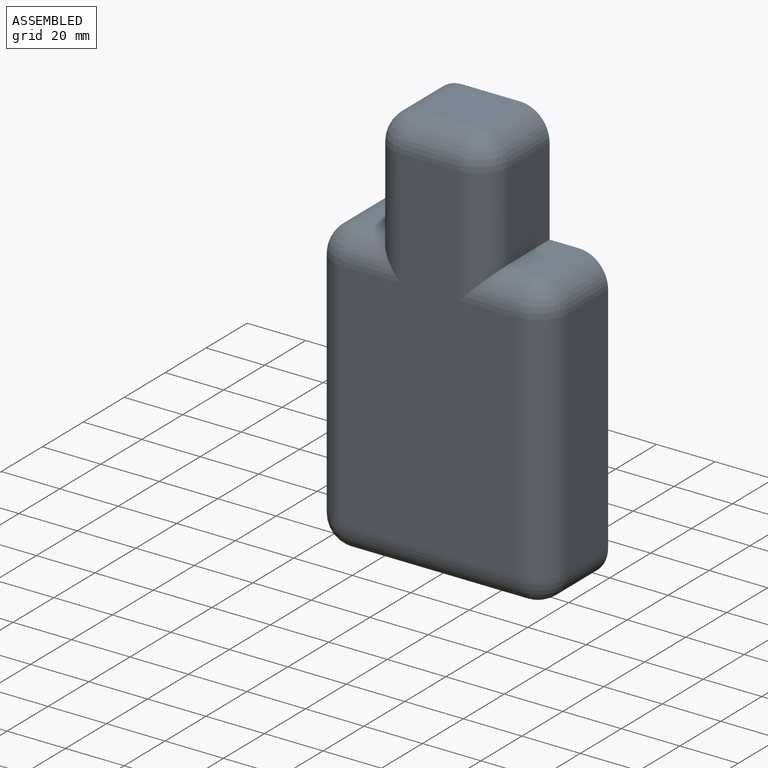
[diagram: assembled view]
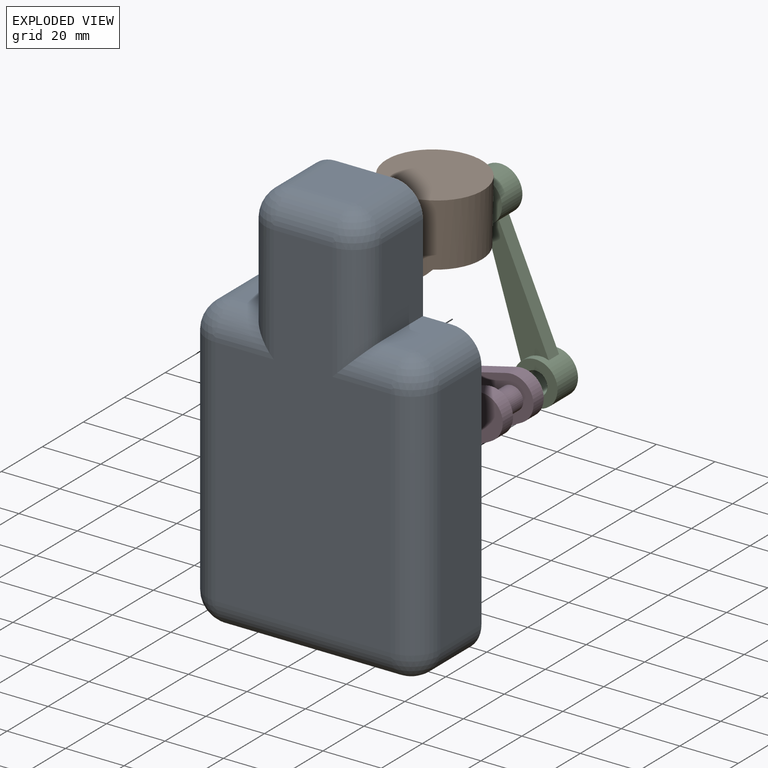
[diagram: exploded view]
GUIDED TOUR — MATED ASSEMBLY (Onshape document 39f56c53c41078a76400f09e, AutoMate assembly 39f56c53c41078a76400f09e_f2b36275736f0dcb15a1e389_f93648f23bc5ed8fcb8ea8ee_default)

This assembly has 4 components, labeled P0..P3 below (a component is one placed occurrence of a part; the same part can appear more than once), held together by 3 mates. A mate is a constraint between two components; its type names the relative motion it leaves free:
  REVOLUTE — leaves rotation about the listed axis free (a hinge).
Axis/direction vectors are unit vectors and 'through' points are millimeter coordinates, both in the assembly's world frame.

MATES
  1. REVOLUTE "Revolute 2": P2 <-> P3, axis (0.000, 1.000, 0.000) through (22.45, -11.09, -10.44) mm
  2. REVOLUTE "Revolute 1": P2 <-> P1, axis (0.000, 1.000, 0.000) through (3.45, -3.59, 41.17) mm
  3. REVOLUTE "Revolute 3": P0 <-> P3, axis (0.000, 1.000, 0.000) through (3.74, 3.91, -17.50) mm

ASSEMBLY ORDER
  1. P2 — the base component [order heuristic]
  2. P1 [order heuristic]
  3. P3 [order heuristic]
  4. P0 [order heuristic]
Order-tag legend:
  [order heuristic] — this assembly is geometrically interlocked (no collision-free removal order exists), so components are listed in mate-graph order; insertion feasibility is not verified.

Of the 4 components, 1 carries the full construction recipe — the FeatureScript program that regenerates the part's solid from scratch; the rest are supplied as boundary geometry only.
Each toured component is shown spotlighted twice — in the assembled view, then in the exploded view, where a leader line traces a displaced component back to its assembled socket (saturated green if recipe-attached, orange if geometry-only; every other component desaturated gray) — followed by its recipe or geometry summary and the mates that hold it.
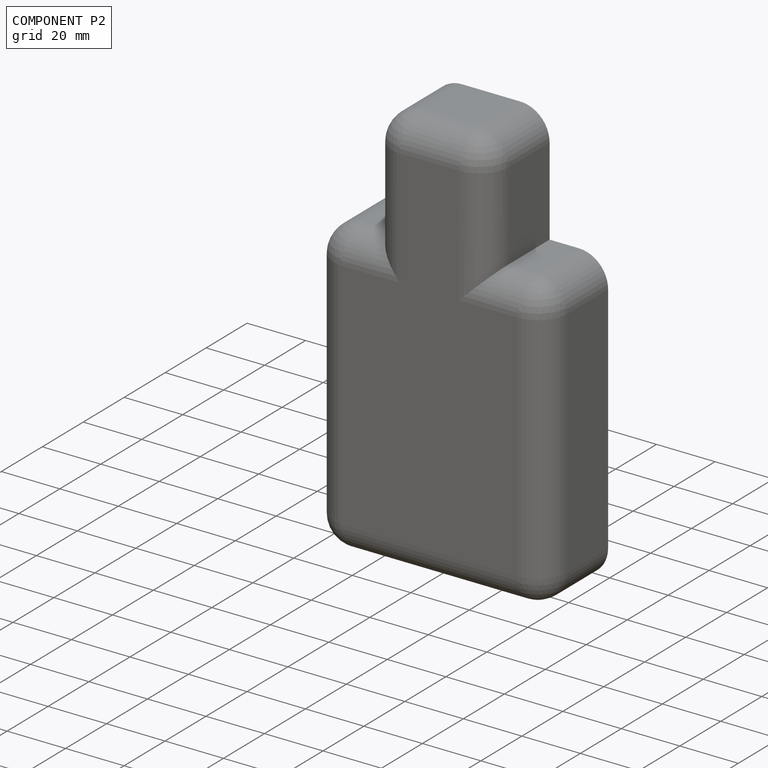
[diagram: component P2 — assembled]
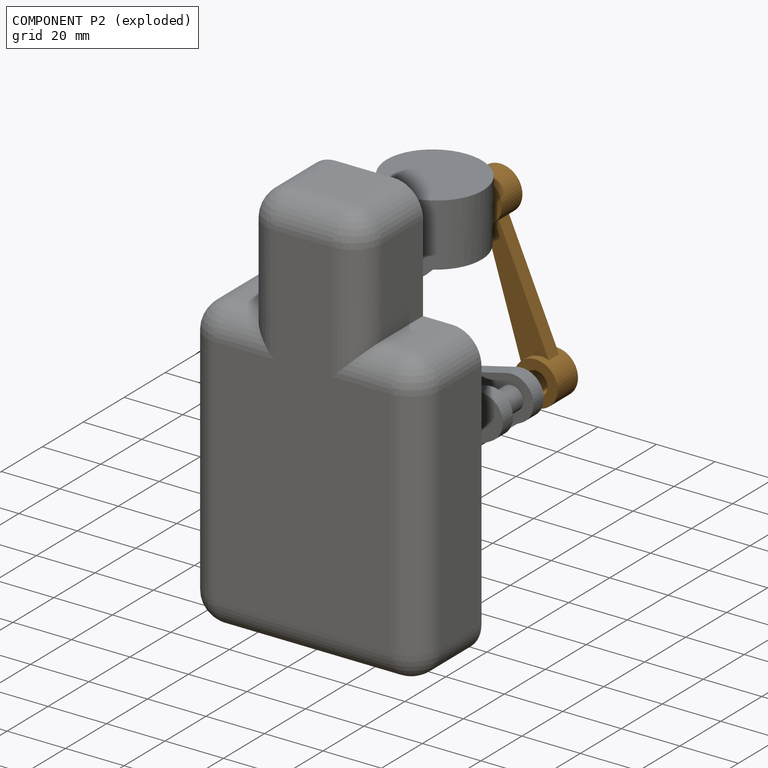
[diagram: component P2 — exploded]
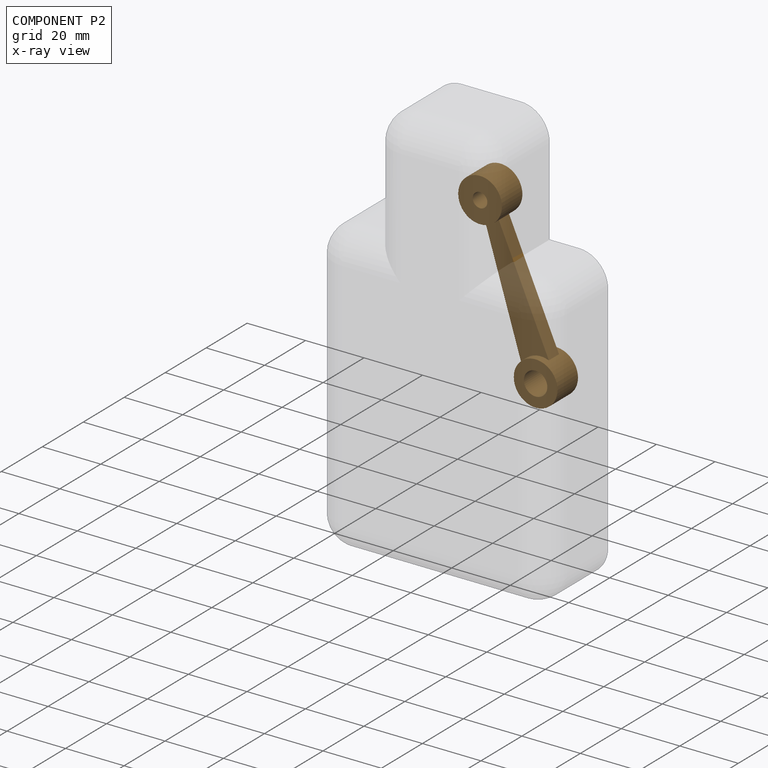
[diagram: component P2 — x-ray view]
COMPONENT P2 — geometry summary (no construction recipe available for this part):
  bounding box: 67.2 x 32.3 x 10.0 mm
  B-rep topology: 1 solid, 12 faces, 50 edges
  volume: 4350 mm^3 (20% of its bounding box)
  symmetry: mirror-symmetric across its y mid-plane
Held by: REVOLUTE mate "Revolute 2" to P3; REVOLUTE mate "Revolute 1" to P1.
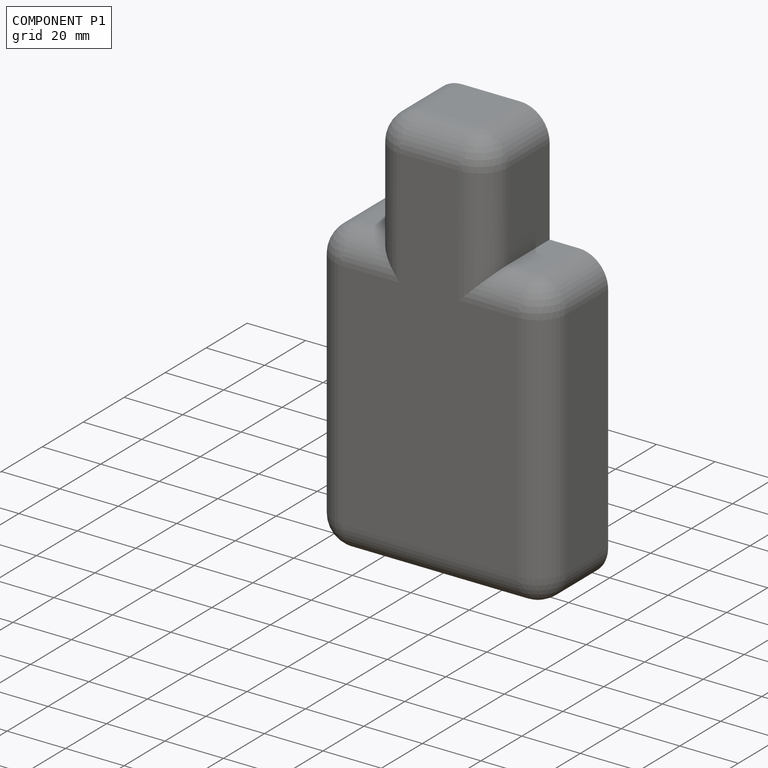
[diagram: component P1 — assembled]
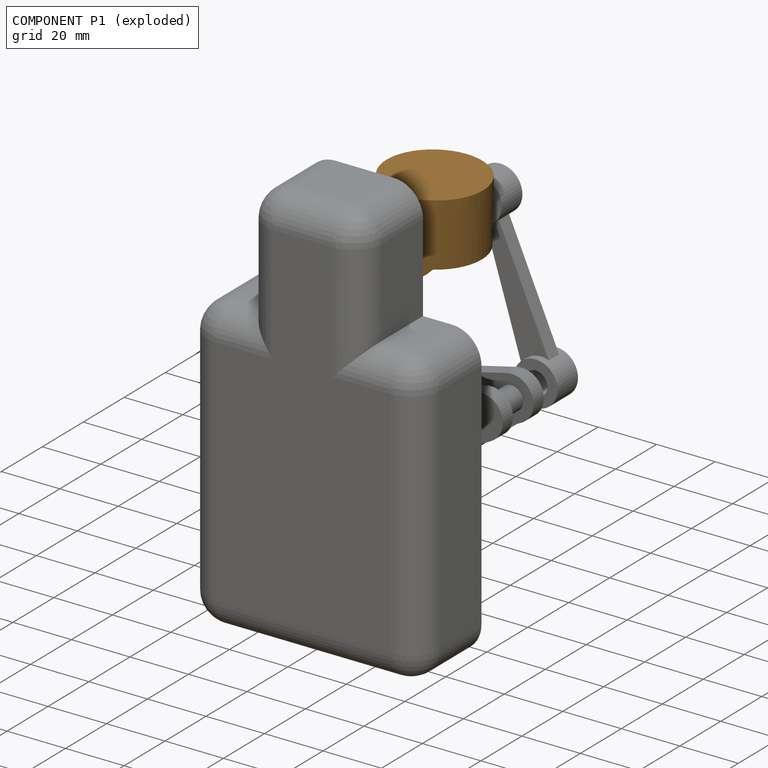
[diagram: component P1 — exploded]
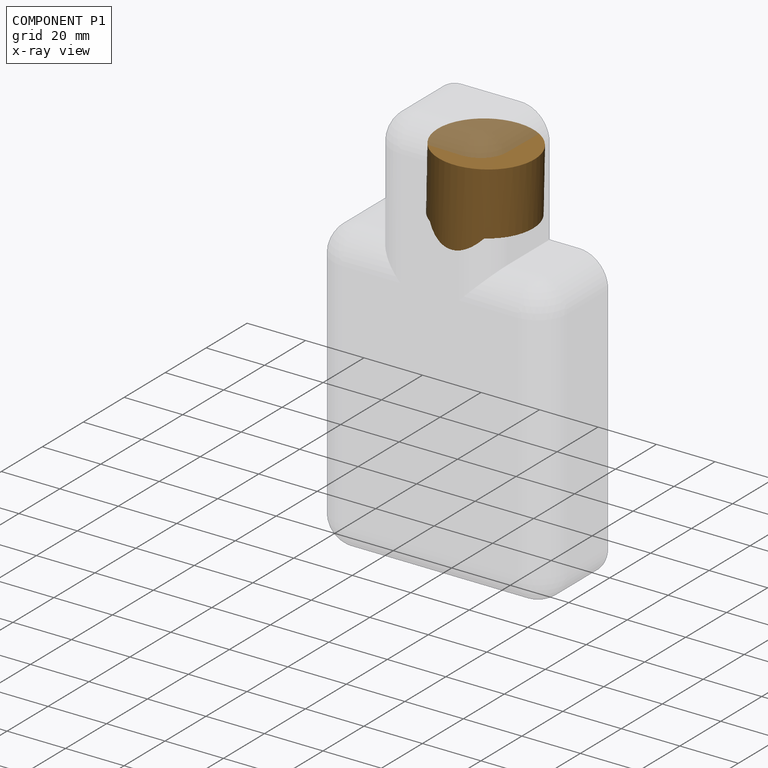
[diagram: component P1 — x-ray view]
COMPONENT P1 — geometry summary (no construction recipe available for this part):
  bounding box: 33.0 x 33.0 x 26.5 mm
  B-rep topology: 1 solid, 20 faces, 106 edges
  volume: 8370 mm^3 (29% of its bounding box)
  symmetry: 2-fold rotationally symmetric about the z axis; mirror-symmetric across its x mid-plane, y mid-plane
Held by: REVOLUTE mate "Revolute 1" to P2.
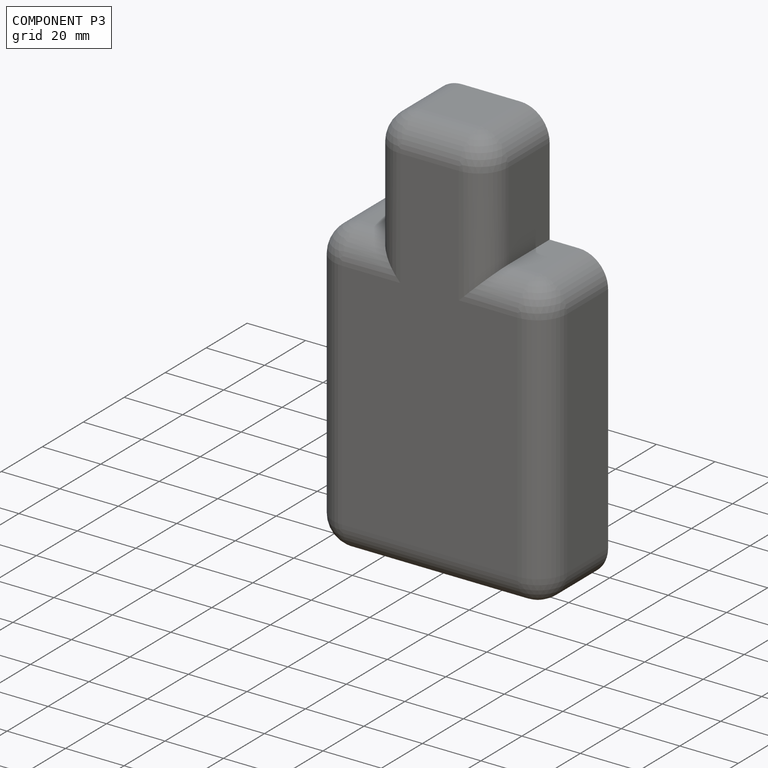
[diagram: component P3 — assembled]
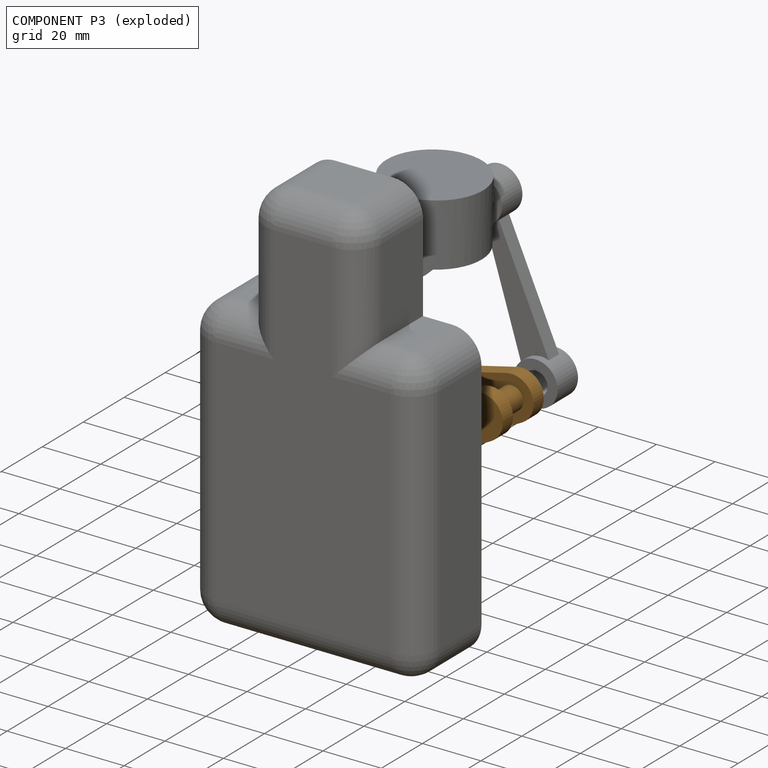
[diagram: component P3 — exploded]
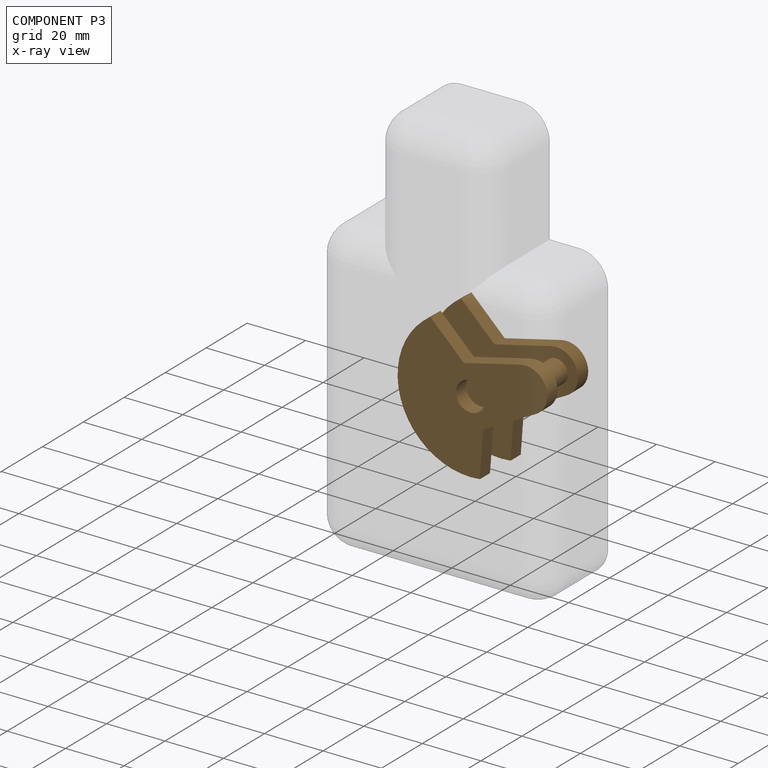
[diagram: component P3 — x-ray view]
COMPONENT P3 — geometry summary (no construction recipe available for this part):
  bounding box: 49.8 x 43.1 x 20.0 mm
  B-rep topology: 1 solid, 21 faces, 102 edges
  volume: 13233 mm^3 (31% of its bounding box)
  symmetry: mirror-symmetric across its y mid-plane
Held by: REVOLUTE mate "Revolute 2" to P2; REVOLUTE mate "Revolute 3" to P0.
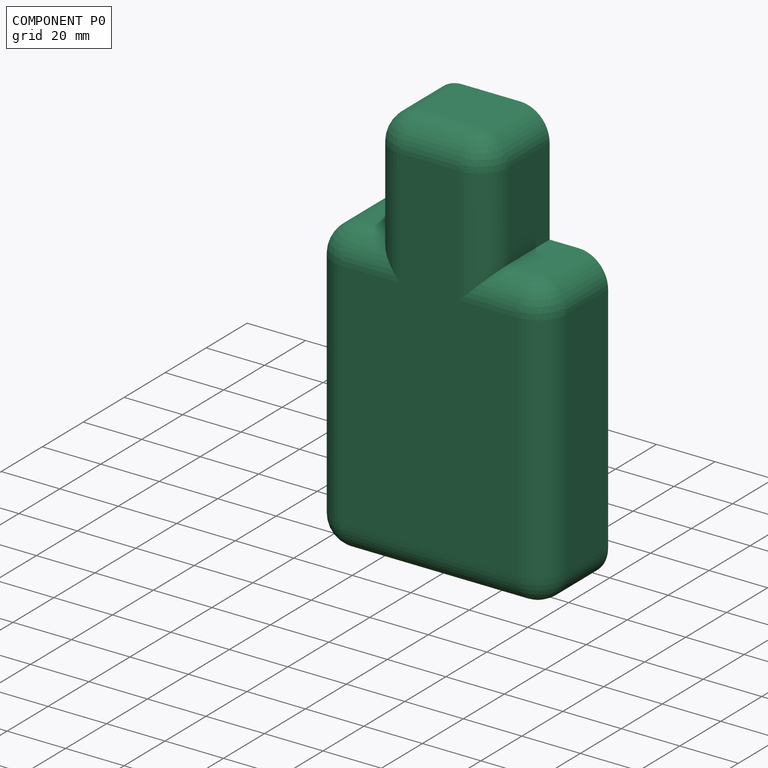
[diagram: component P0 — assembled]
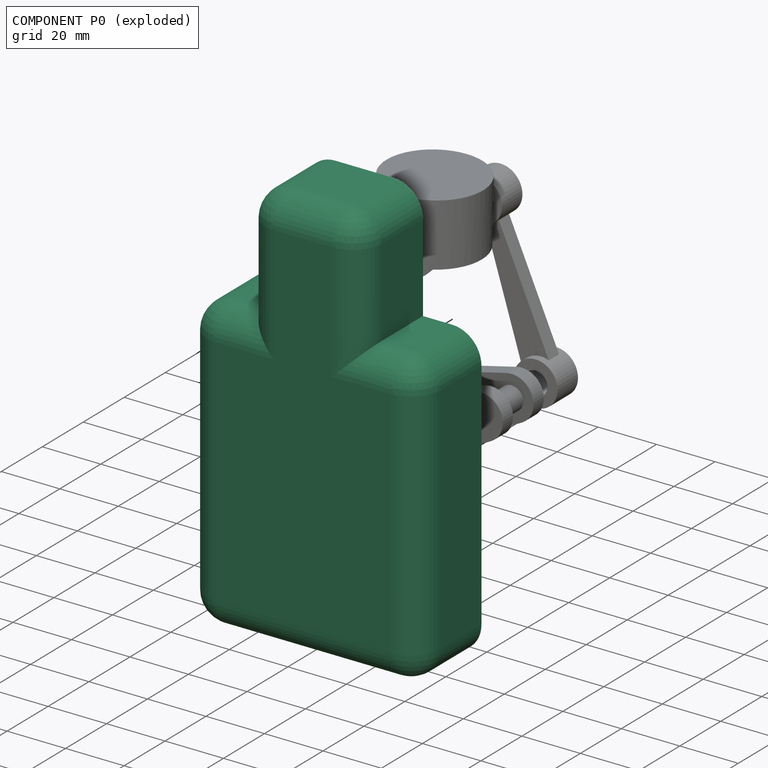
[diagram: component P0 — exploded]
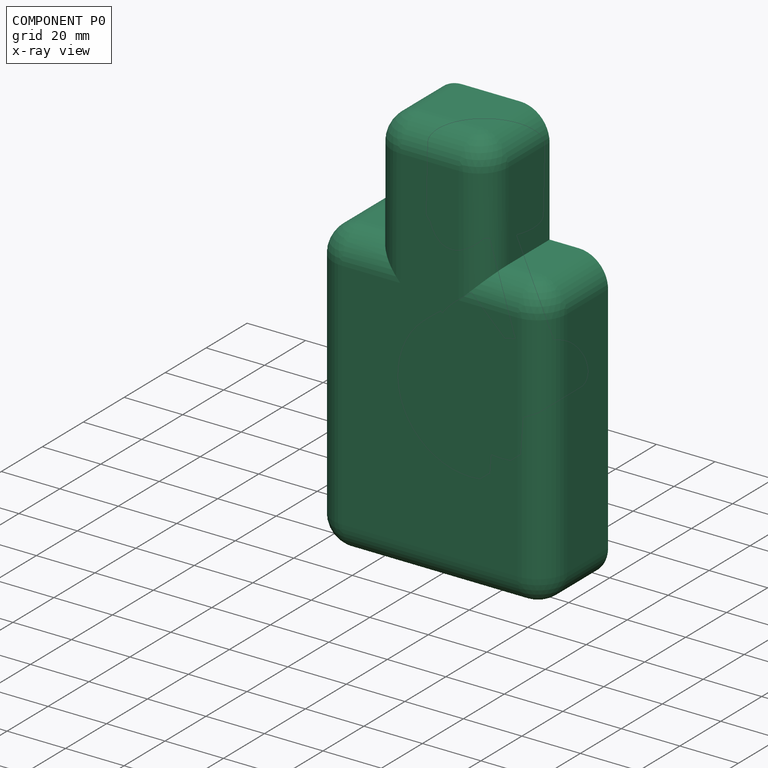
[diagram: component P0 — x-ray view]
COMPONENT P0 — recipe-attached (CADFS 00124350, mesh-verified: the recipe's output STEP matches this component's geometry to below the mesh-comparison resolution (tessellation chordal tolerance ~0.249 mm)).
Held by: REVOLUTE mate "Revolute 3" to P3.
Construction recipe (FeatureScript — the CAD program that rebuilds this solid; sketch coordinates are in the units given by the * unit suffixes, e.g. mm):

FeatureScript 1511;
import(path : "onshape/std/geometry.fs", version : "1511.0");
import(path : "onshape/std/common.fs", version : "1511.0");
const mm = millimeter;
const VERTEX = EntityType.VERTEX;
const EDGE = EntityType.EDGE;
const FACE = EntityType.FACE;
const BODY = EntityType.BODY;
function v(x, y){return vector(x, y);}
function OD(order){return orderDisambiguation(order);}
function OSD(set){return originalSetDisambiguation(set);}
function TD(topology){return topologyDisambiguation(topology);}
function TDD(query){return trueDependencyDisambiguation(query);}
function sQuery(a, b, c) {return sketchEntityQuery(a, b, c);}

annotation { "Feature Type Name" : "Feature", "Feature Type Description" : "" }
export const myFeature = defineFeature(function(context is Context, id is Id, definition is map)
    precondition{}
    {
        {
            var Q0;
            Q0=qCreatedBy(makeId("Front.planeOp"),FACE);
            var sketch = newSketch(context, id + "F0", { "sketchPlane" : qUnion([Q0])});
            skLineSegment(sketch, "E0.bottom", {"start": v(40, 50) * mm, "end": v(20, 50) * mm});
            skLineSegment(sketch, "E0.top", {"start": v(40, -50) * mm, "end": v(-40, -50) * mm});
            skLineSegment(sketch, "E0.left", {"start": v(40, 50) * mm, "end": v(40, -50) * mm});
            skLineSegment(sketch, "E0.right", {"start": v(-40, 50) * mm, "end": v(-40, -50) * mm});
            skPoint(sketch, "E0.middle", {"position": v(0, 0) * mm});
            skLineSegment(sketch, "E1.top", {"start": v(-20, 90) * mm, "end": v(20, 90) * mm});
            skLineSegment(sketch, "E1.left", {"start": v(-20, 50) * mm, "end": v(-20, 90) * mm});
            skLineSegment(sketch, "E1.right", {"start": v(20, 50) * mm, "end": v(20, 90) * mm});
            skLineSegment(sketch, "E2.trimOffspring", {"start": v(-20, 50) * mm, "end": v(-40, 50) * mm});
            skSolve(sketch);
        }
        {
            var Q0;
            Q0=makeQuery(id+"F0.imprint","IMPRINT",FACE,{"disambiguationData":[TD([[makeQuery(id+"F0.imprint","IMPRINT",EDGE,{"derivedFrom":sQuery(id+"F0.wireOp",EDGE,"E0.bottom")}),1.0]])]});
            extrude(context, id + "F1", {"entities" : qUnion([Q0]), "depth" : 40 * mm});
        }
        {
            var Q0;
            Q0=makeQuery(id+"F1.opExtrude","CAP_EDGE",EDGE,{"disambiguationData":[OSD([sQuery(id+"F0.wireOp",EDGE,"E0.left")])],"isStart":false});
            var Q1;
            Q1=makeQuery(id+"F1.opExtrude","CAP_EDGE",EDGE,{"disambiguationData":[OSD([sQuery(id+"F0.wireOp",EDGE,"E0.left")])],"isStart":true});
            var Q2;
            Q2=makeQuery(id+"F1.opExtrude","SWEPT_EDGE",EDGE,{"disambiguationData":[OSD([sQuery(id+"F0.wireOp",EDGE,"E0.bottom"),sQuery(id+"F0.wireOp",EDGE,"E0.left")])]});
            var Q3;
            Q3=makeQuery(id+"F1.opExtrude","CAP_EDGE",EDGE,{"disambiguationData":[OSD([sQuery(id+"F0.wireOp",EDGE,"E0.right")])],"isStart":false});
            var Q4;
            Q4=makeQuery(id+"F1.opExtrude","CAP_EDGE",EDGE,{"disambiguationData":[OSD([sQuery(id+"F0.wireOp",EDGE,"E0.right")])],"isStart":true});
            var Q5;
            Q5=makeQuery(id+"F1.opExtrude","CAP_EDGE",EDGE,{"disambiguationData":[OSD([sQuery(id+"F0.wireOp",EDGE,"E1.left")])],"isStart":false});
            var Q6;
            Q6=makeQuery(id+"F1.opExtrude","CAP_EDGE",EDGE,{"disambiguationData":[OSD([sQuery(id+"F0.wireOp",EDGE,"E1.left")])],"isStart":true});
            var Q7;
            Q7=makeQuery(id+"F1.opExtrude","CAP_EDGE",EDGE,{"disambiguationData":[OSD([sQuery(id+"F0.wireOp",EDGE,"E1.right")])],"isStart":false});
            var Q8;
            Q8=makeQuery(id+"F1.opExtrude","CAP_EDGE",EDGE,{"disambiguationData":[OSD([sQuery(id+"F0.wireOp",EDGE,"E1.right")])],"isStart":true});
            var Q9;
            Q9=makeQuery(id+"F1.opExtrude","CAP_EDGE",EDGE,{"disambiguationData":[OSD([sQuery(id+"F0.wireOp",EDGE,"E1.top")])],"isStart":false});
            var Q10;
            Q10=makeQuery(id+"F1.opExtrude","SWEPT_EDGE",EDGE,{"disambiguationData":[OSD([sQuery(id+"F0.wireOp",EDGE,"E1.top"),sQuery(id+"F0.wireOp",EDGE,"E1.left")])]});
            var Q11;
            Q11=makeQuery(id+"F1.opExtrude","SWEPT_EDGE",EDGE,{"disambiguationData":[OSD([sQuery(id+"F0.wireOp",EDGE,"E1.top"),sQuery(id+"F0.wireOp",EDGE,"E1.right")])]});
            var Q12;
            Q12=makeQuery(id+"F1.opExtrude","CAP_EDGE",EDGE,{"disambiguationData":[OSD([sQuery(id+"F0.wireOp",EDGE,"E1.top")])],"isStart":true});
            var Q13;
            Q13=makeQuery(id+"F1.opExtrude","CAP_EDGE",EDGE,{"disambiguationData":[OSD([sQuery(id+"F0.wireOp",EDGE,"E0.bottom")])],"isStart":false});
            var Q14;
            Q14=makeQuery(id+"F1.opExtrude","CAP_FACE",FACE,{"disambiguationData":[OSD([sQuery(id+"F0.wireOp",EDGE,"E0.bottom"),sQuery(id+"F0.wireOp",EDGE,"E0.top"),sQuery(id+"F0.wireOp",EDGE,"E0.left"),sQuery(id+"F0.wireOp",EDGE,"E0.right"),sQuery(id+"F0.wireOp",EDGE,"E1.top"),sQuery(id+"F0.wireOp",EDGE,"E1.left"),sQuery(id+"F0.wireOp",EDGE,"E1.right"),sQuery(id+"F0.wireOp",EDGE,"E2.trimOffspring")])],"isStart":false});
            var Q15;
            Q15=makeQuery(id+"F1.opExtrude","CAP_EDGE",EDGE,{"disambiguationData":[OSD([sQuery(id+"F0.wireOp",EDGE,"E2.trimOffspring")])],"isStart":true});
            var Q16;
            Q16=makeQuery(id+"F1.opExtrude","CAP_EDGE",EDGE,{"disambiguationData":[OSD([sQuery(id+"F0.wireOp",EDGE,"E0.bottom")])],"isStart":true});
            var Q17;
            Q17=makeQuery(id+"F1.opExtrude","CAP_EDGE",EDGE,{"disambiguationData":[OSD([sQuery(id+"F0.wireOp",EDGE,"E0.top")])],"isStart":true});
            var Q18;
            Q18=makeQuery(id+"F1.opExtrude","SWEPT_EDGE",EDGE,{"disambiguationData":[OSD([sQuery(id+"F0.wireOp",EDGE,"E0.top"),sQuery(id+"F0.wireOp",EDGE,"E0.left")])]});
            var Q19;
            Q19=makeQuery(id+"F1.opExtrude","SWEPT_EDGE",EDGE,{"disambiguationData":[OSD([sQuery(id+"F0.wireOp",EDGE,"E0.top"),sQuery(id+"F0.wireOp",EDGE,"E0.right")])]});
            var Q20;
            Q20=makeQuery(id+"F1.opExtrude","SWEPT_EDGE",EDGE,{"disambiguationData":[OSD([sQuery(id+"F0.wireOp",EDGE,"E0.right"),sQuery(id+"F0.wireOp",EDGE,"E2.trimOffspring")])]});
            fillet(context, id + "F2", {"entities" : qUnion([Q0, Q1, Q2, Q3, Q4, Q5, Q6, Q7, Q8, Q9, Q10, Q11, Q12, Q13, Q14, Q15, Q16, Q17, Q18, Q19, Q20]), "radius" : 10 * mm, "tangentPropagation" : true, "allowEdgeOverflow" : false});
        }
        {
            var Q0;
            Q0=makeQuery(id+"F1.opExtrude","CAP_FACE",FACE,{"disambiguationData":[OSD([sQuery(id+"F0.wireOp",EDGE,"E0.bottom"),sQuery(id+"F0.wireOp",EDGE,"E0.top"),sQuery(id+"F0.wireOp",EDGE,"E0.left"),sQuery(id+"F0.wireOp",EDGE,"E0.right"),sQuery(id+"F0.wireOp",EDGE,"E1.top"),sQuery(id+"F0.wireOp",EDGE,"E1.left"),sQuery(id+"F0.wireOp",EDGE,"E1.right"),sQuery(id+"F0.wireOp",EDGE,"E2.trimOffspring")])],"isStart":true});
            var Q1;
            {var subQ0=sQuery(id+"F0.wireOp",EDGE,"E1.top");Q1=makeQuery(id+"F2.opFillet","BLEND_FACE",FACE,{"disambiguationData":[OSD([subQ0]),TDD([makeQuery(id+"F1.opExtrude","CAP_EDGE",EDGE,{"disambiguationData":[OSD([subQ0])],"isStart":true})])]});}
            var Q2;
            {var subQ0=sQuery(id+"F0.wireOp",EDGE,"E1.left");Q2=makeQuery(id+"F2.opFillet","BLEND_FACE",FACE,{"disambiguationData":[OSD([subQ0]),TDD([makeQuery(id+"F1.opExtrude","CAP_EDGE",EDGE,{"disambiguationData":[OSD([subQ0])],"isStart":true})])]});}
            var Q3;
            {var subQ0=sQuery(id+"F0.wireOp",EDGE,"E1.left");var subQ1=sQuery(id+"F0.wireOp",EDGE,"E1.top");Q3=makeQuery(id+"F2.opFillet","BLEND_FACE",FACE,{"disambiguationData":[OSD([subQ1,subQ0]),TDD([makeQuery(id+"F1.opExtrude","CAP_VERTEX",VERTEX,{"disambiguationData":[OSD([subQ1,subQ0])],"isStart":true})])]});}
            var Q4;
            {var subQ0=sQuery(id+"F0.wireOp",EDGE,"E2.trimOffspring");Q4=makeQuery(id+"F2.opFillet","BLEND_FACE",FACE,{"disambiguationData":[OSD([subQ0]),TDD([makeQuery(id+"F1.opExtrude","CAP_EDGE",EDGE,{"disambiguationData":[OSD([subQ0])],"isStart":true})])]});}
            var Q5;
            {var subQ0=sQuery(id+"F0.wireOp",EDGE,"E2.trimOffspring");var subQ1=sQuery(id+"F0.wireOp",EDGE,"E0.right");Q5=makeQuery(id+"F2.opFillet","BLEND_FACE",FACE,{"disambiguationData":[OSD([subQ1,subQ0]),TDD([makeQuery(id+"F1.opExtrude","CAP_VERTEX",VERTEX,{"disambiguationData":[OSD([subQ1,subQ0])],"isStart":true})])]});}
            var Q6;
            {var subQ0=sQuery(id+"F0.wireOp",EDGE,"E0.right");Q6=makeQuery(id+"F2.opFillet","BLEND_FACE",FACE,{"disambiguationData":[OSD([subQ0]),TDD([makeQuery(id+"F1.opExtrude","CAP_EDGE",EDGE,{"disambiguationData":[OSD([subQ0])],"isStart":true})])]});}
            var Q7;
            {var subQ0=sQuery(id+"F0.wireOp",EDGE,"E0.right");var subQ1=sQuery(id+"F0.wireOp",EDGE,"E0.top");Q7=makeQuery(id+"F2.opFillet","BLEND_FACE",FACE,{"disambiguationData":[OSD([subQ1,subQ0]),TDD([makeQuery(id+"F1.opExtrude","CAP_VERTEX",VERTEX,{"disambiguationData":[OSD([subQ1,subQ0])],"isStart":true})])]});}
            var Q8;
            {var subQ0=sQuery(id+"F0.wireOp",EDGE,"E0.top");Q8=makeQuery(id+"F2.opFillet","BLEND_FACE",FACE,{"disambiguationData":[OSD([subQ0]),TDD([makeQuery(id+"F1.opExtrude","CAP_EDGE",EDGE,{"disambiguationData":[OSD([subQ0])],"isStart":true})])]});}
            var Q9;
            {var subQ0=sQuery(id+"F0.wireOp",EDGE,"E0.left");var subQ1=sQuery(id+"F0.wireOp",EDGE,"E0.top");Q9=makeQuery(id+"F2.opFillet","BLEND_FACE",FACE,{"disambiguationData":[OSD([subQ1,subQ0]),TDD([makeQuery(id+"F1.opExtrude","CAP_VERTEX",VERTEX,{"disambiguationData":[OSD([subQ1,subQ0])],"isStart":true})])]});}
            var Q10;
            {var subQ0=sQuery(id+"F0.wireOp",EDGE,"E0.left");Q10=makeQuery(id+"F2.opFillet","BLEND_FACE",FACE,{"disambiguationData":[OSD([subQ0]),TDD([makeQuery(id+"F1.opExtrude","CAP_EDGE",EDGE,{"disambiguationData":[OSD([subQ0])],"isStart":true})])]});}
            var Q11;
            {var subQ0=sQuery(id+"F0.wireOp",EDGE,"E0.left");var subQ1=sQuery(id+"F0.wireOp",EDGE,"E0.bottom");Q11=makeQuery(id+"F2.opFillet","BLEND_FACE",FACE,{"disambiguationData":[OSD([subQ1,subQ0]),TDD([makeQuery(id+"F1.opExtrude","CAP_VERTEX",VERTEX,{"disambiguationData":[OSD([subQ1,subQ0])],"isStart":true})])]});}
            var Q12;
            {var subQ0=sQuery(id+"F0.wireOp",EDGE,"E0.bottom");Q12=makeQuery(id+"F2.opFillet","BLEND_FACE",FACE,{"disambiguationData":[OSD([subQ0]),TDD([makeQuery(id+"F1.opExtrude","CAP_EDGE",EDGE,{"disambiguationData":[OSD([subQ0])],"isStart":true})])]});}
            var Q13;
            {var subQ0=sQuery(id+"F0.wireOp",EDGE,"E1.right");Q13=makeQuery(id+"F2.opFillet","BLEND_FACE",FACE,{"disambiguationData":[OSD([subQ0]),TDD([makeQuery(id+"F1.opExtrude","CAP_EDGE",EDGE,{"disambiguationData":[OSD([subQ0])],"isStart":true})])]});}
            var Q14;
            {var subQ0=sQuery(id+"F0.wireOp",EDGE,"E1.right");var subQ1=sQuery(id+"F0.wireOp",EDGE,"E1.top");Q14=makeQuery(id+"F2.opFillet","BLEND_FACE",FACE,{"disambiguationData":[OSD([subQ1,subQ0]),TDD([makeQuery(id+"F1.opExtrude","CAP_VERTEX",VERTEX,{"disambiguationData":[OSD([subQ1,subQ0])],"isStart":true})])]});}
            shell(context, id + "F3", {"entities" : qUnion([Q0, Q1, Q2, Q3, Q4, Q5, Q6, Q7, Q8, Q9, Q10, Q11, Q12, Q13, Q14]), "thickness" : 1 * mm});
        }
        {
            var Q0;
            Q0=qCreatedBy(makeId("Front.planeOp"),FACE);
            var sketch = newSketch(context, id + "F4", { "sketchPlane" : qUnion([Q0])});
            skCircle(sketch, "E3", {"center": v(0, 0) * mm, "radius": 5 * mm});
            skSolve(sketch);
        }
        {
            var Q0;
            Q0=makeQuery(id+"F4.imprint","IMPRINT",FACE,{"disambiguationData":[TD([[makeQuery(id+"F4.imprint","IMPRINT",EDGE,{"derivedFrom":sQuery(id+"F4.wireOp",EDGE,"E3")}),1.0]])]});
            var Q1;
            Q1=makeQuery(id+"F3.opShell","OFFSET_FACE",FACE,{"disambiguationData":[OSD([sQuery(id+"F0.wireOp",EDGE,"E0.bottom"),sQuery(id+"F0.wireOp",EDGE,"E0.top"),sQuery(id+"F0.wireOp",EDGE,"E0.left"),sQuery(id+"F0.wireOp",EDGE,"E0.right"),sQuery(id+"F0.wireOp",EDGE,"E1.top"),sQuery(id+"F0.wireOp",EDGE,"E1.left"),sQuery(id+"F0.wireOp",EDGE,"E1.right"),sQuery(id+"F0.wireOp",EDGE,"E2.trimOffspring")])]});
            extrude(context, id + "F5", {"entities" : qUnion([Q0]), "operationType" : NewBodyOperationType.ADD, "endBound" : BoundingType.UP_TO_SURFACE, "endBoundEntityFace" : qUnion([Q1]), "depth" : 25 * mm});
        }
    });
PROVENANCE & LICENSES
Assembly (occurrences, transforms, mates, per-part STEP geometry): AutoMate dataset, Zenodo record 7776208, CC0.
Construction recipes: CADFS (HuggingFace VladPyatov/CADFS, CC-BY-4.0, layered over the ABC dataset), FeatureScript reconstruction programs keyed by ABC model id.
Join: ABC meta listings map ABC model id -> Onshape documentId; within a shared document, parts are matched by geometric signature (bounding-box dims + volume at 0.1% relative tolerance, exact B-rep face/solid counts).
Verification: 1 of this assembly's 4 components carries a recipe attachment, and every attachment is mesh-verified: the CADFS STEP and the AutoMate member STEP were compared as meshes in their shared local frame (symmetric sampled-point-to-mesh distance); worst across the 1 attachment: below the mesh-comparison resolution (tessellation chordal tolerance ~0.249 mm) on a 166 mm part.
Renders: orthographic iso camera (az 35 / el 25); the floor grid conveys scale (grid pitch printed in each image; no ruler). In the exploded view each component is displaced by its stored offset vector: the offsets alone carry the explosion direction (mate normal/axis signs are not orientation cues and do not encode it), and separation distances are assigned per mate-chain, not proportionally to assembly-order depth.
